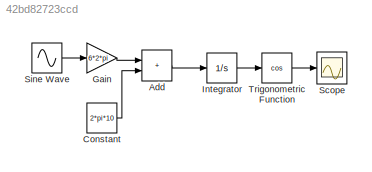
MODEL slx_42bd82723ccd
KIND model
CONFIG AbsTol = auto
CONFIG EnableMultiTasking = off
CONFIG FixedStep = auto
CONFIG MaxStep = auto
CONFIG MinStep = auto
CONFIG RelTol = 1e-3
CONFIG SampleTimeConstraint = Unconstrained
CONFIG SolverName = VariableStepAuto
CONFIG StartTime = 0.0
CONFIG StopTime = 20
BLOCK [Sum] Add
  IconShape = rectangular
BLOCK [Constant] Constant
  Value = 2*pi*10
BLOCK [Gain] Gain
  Gain = 6*2*pi
BLOCK [Integrator] Integrator
BLOCK [Scope] Scope
  Floating = off
  NumInputPorts = 1
  ScopeSpecificationString = Simulink.scopes.TimeScopeBlockCfg('CurrentConfiguration', extmgr.ConfigurationSet(extmgr.Configuration('Core','General UI',true),extmgr.Configuration('Core','Source UI',true),extmgr.Configuration('Sources','WiredSimulink',true),extmgr.Configuration('Visuals','Time Domain',true,'SerializedDisplays',{struct('MinYLimReal','-1.25','MaxYLimReal','1.25','YLabelReal','','MinYLimMag','0.00000','MaxYLimMag...<+1324ch>
BLOCK [Sin] Sine Wave
  Frequency = 2*pi
  Phase = pi/2
  SampleTime = 1/5000
BLOCK [Trigonometry] Trigonometric Function
  Operator = cos
LINE Add:1 -> Integrator:1
LINE Constant:1 -> Add:2
LINE Gain:1 -> Add:1
LINE Integrator:1 -> Trigonometric Function:1
LINE Sine Wave:1 -> Gain:1
LINE Trigonometric Function:1 -> Scope:1
